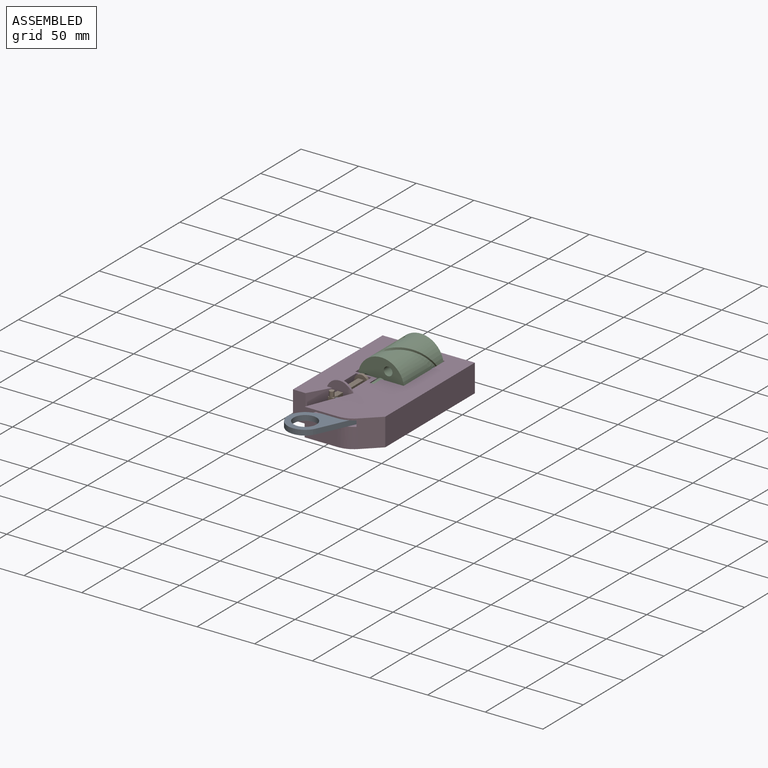
[diagram: assembled view]
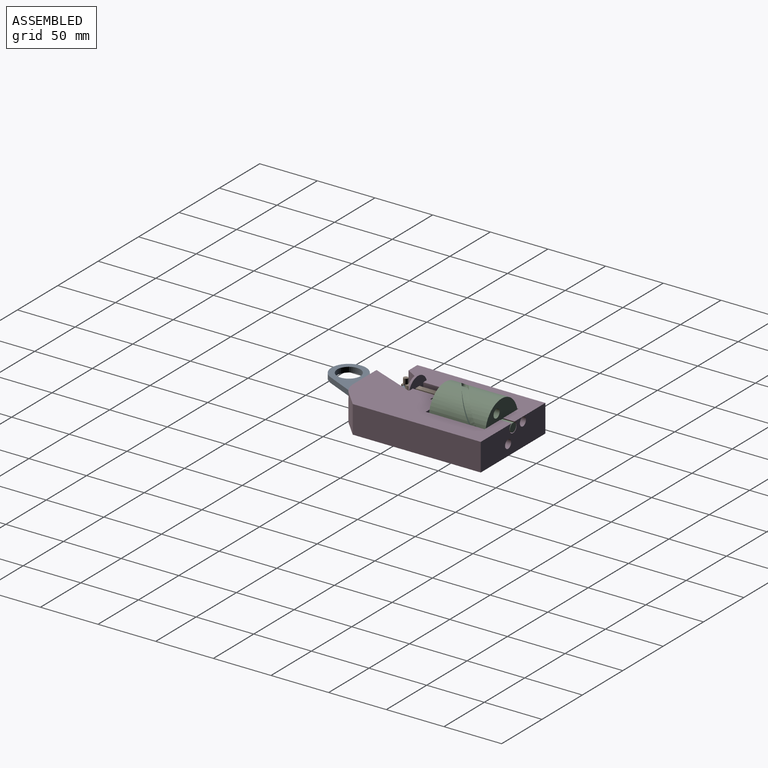
[diagram: assembled view, second angle]
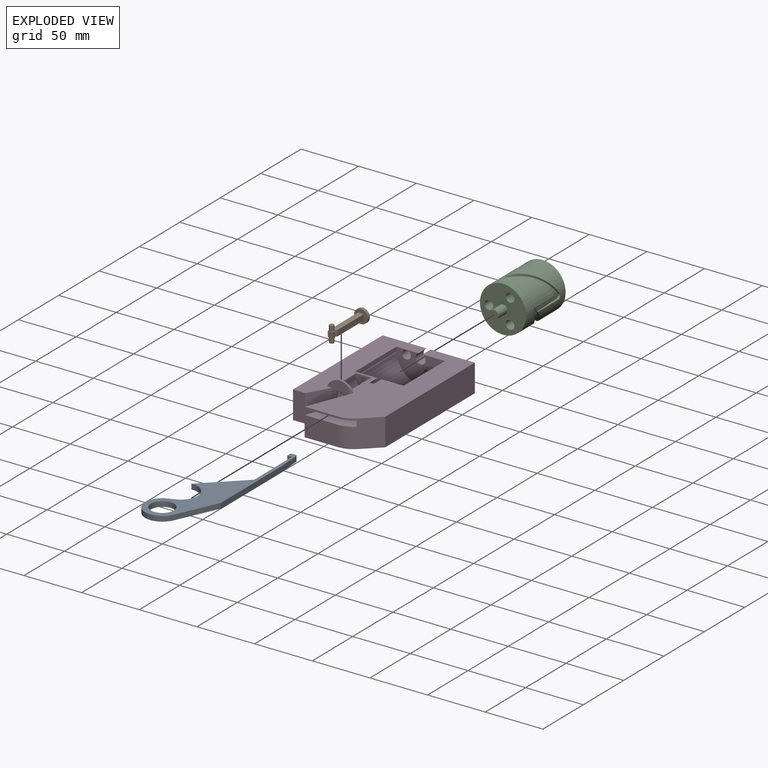
[diagram: exploded view]
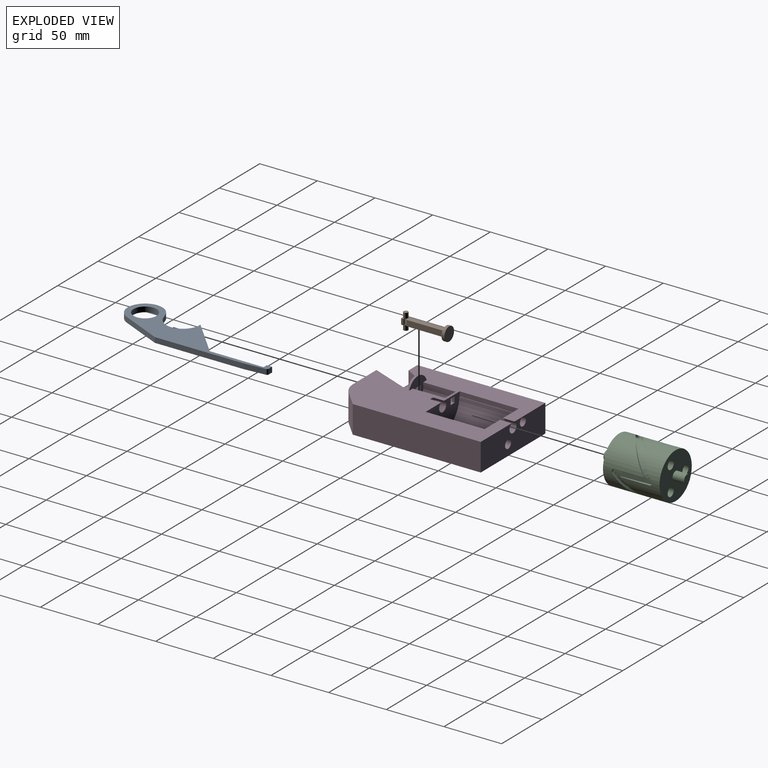
[diagram: exploded view, second angle]
ASSEMBLY  parts=4 mates=6
PART A: 17 faces, bbox 45x141.3x4.5 mm
  f0: plane 17.49x4.5mm, normal (1,-0.07,0), area 78.9mm2, adj f1,f14,f15,f16
  f1: cylinder r=30mm len=4.5mm, axis (0,0,-1), area 10.1mm2, adj f0,f2,f15,f16
  f2: plane 75.59x4.5mm, normal (1,0,0), area 340.1mm2, adj f1,f3,f15,f16
  f3: plane 35.78x16.36mm, normal (0.91,0.42,0), area 177mm2, adj f2,f4,f15,f16
  f4: cylinder r=15mm len=29.17mm, axis (0,0,-1), area 266.5mm2, adj f3,f5,f15,f16
  f5: plane 4.93x4.5mm, normal (-0.33,-0.94,0), area 23.5mm2, adj f4,f6,f15,f16
  f6: cylinder r=14.46mm len=28.12mm, axis (0,0,-1), area 182.7mm2, adj f5,f7,f15,f16
  f7: plane 4.5x1mm, normal (0,1,0), area 4.5mm2, adj f6,f8,f15,f16
  f8: plane 32.75x31mm, normal (-0.69,-0.73,0), area 202.9mm2, adj f7,f9,f15,f16
  f9: plane 46.75x4.5mm, normal (-1,0,0), area 210.4mm2, adj f8,f10,f15,f16
  f10: plane 4.5x4mm, normal (0,1,0), area 18mm2, adj f9,f11,f15,f16
  f11: plane 4.5x4.5mm, normal (-1,0,0), area 20.3mm2, adj f10,f12,f15,f16
  f12: plane 4.5x4.11mm, normal (0,-1,0), area 18.5mm2, adj f11,f14,f15,f16
  f13: cylinder r=10mm len=20mm, axis (0,0,-1), area 282.7mm2, adj f15,f16
  f14: cylinder r=1.5mm len=4.5mm, axis (0,0,-1), area 10.1mm2, adj f0,f12,f15,f16
  f15: plane 141.25x45mm, normal (0,0,1), area 1905.8mm2, adj f0,f1,f2,f3,f4,f5,f6,f7
  f16: plane 141.25x45mm, normal (0,0,-1), area 1905.8mm2, adj f0,f1,f2,f3,f4,f5,f6,f7
PART B: 21 faces, bbox 12x40x14 mm
  f0: plane 32.5x5mm, normal (1,0,0), area 162.5mm2, adj f2,f4,f6,f20
  f1: plane 3x2mm, normal (0,0,-1), area 2.9mm2, adj f11,f12,f15,f19
  f2: plane 35.5x5mm, normal (0,0,-1), area 168.8mm2, adj f0,f6,f9,f15,f20
  f3: plane 3x2mm, normal (0,0,1), area 2.9mm2, adj f11,f12,f14,f19
  f4: plane 35.5x5mm, normal (0,0,1), area 168.8mm2, adj f0,f6,f9,f14,f20
  f5: cylinder r=6mm len=12mm, axis (0,-1,0), area 94.2mm2, adj f6,f7
  f6: plane 12x12mm, normal (0,1,0), area 88.1mm2, adj f0,f2,f4,f5,f9
  f7: plane 12x12mm, normal (0,-1,0), area 113.1mm2, adj f5
  f8: plane 2x2mm, normal (0,0,-1), area 0.9mm2, adj f9,f12,f15
  f9: plane 37.5x5mm, normal (-1,0,0), area 187.5mm2, adj f2,f4,f6,f8,f10,f12
  f10: plane 2x2mm, normal (0,0,1), area 0.9mm2, adj f9,f12,f14
  f11: plane 5x2mm, normal (1,0,0), area 10mm2, adj f1,f3,f12,f19
  f12: plane 5x5mm, normal (0,1,0), area 25mm2, adj f1,f3,f8,f9,f10,f11
  f13: plane 4x4mm, normal (0,0,1), area 12.6mm2, adj f14
  f14: cylinder r=2mm len=4.5mm, axis (0,0,-1), area 56.5mm2, adj f3,f4,f10,f13,f17
  f15: cylinder r=2mm len=4.5mm, axis (0,0,-1), area 56.5mm2, adj f1,f2,f8,f16,f18
  f16: plane 4x4mm, normal (0,0,-1), area 12.6mm2, adj f15
  f17: plane 1.05x1mm, normal (0,0,-1), area 0.6mm2, adj f14,f19,f20
  f18: plane 1.05x1mm, normal (0,0,1), area 0.6mm2, adj f15,f19,f20
  f19: plane 5x2mm, normal (0,-1,0), area 10mm2, adj f1,f3,f11,f17,f18,f20
  f20: plane 5x3mm, normal (0.83,0.55,0), area 18mm2, adj f0,f2,f4,f17,f18,f19
PART C: 56 faces, bbox 42.3x70.2x41 mm
  f0: plane 25.14x1.6mm, normal (-0.87,0,-0.5), area 26.1mm2, adj f1,f5,f8,f10,f39,f49
  f1: plane 7.52x4.17mm, normal (-0.5,0,0.87), area 24mm2, adj f0,f6,f22,f39,f49
  f2: plane 25.14x1.6mm, normal (0.87,0,-0.5), area 26.1mm2, adj f3,f4,f5,f7,f45,f46
  f3: plane 7.52x4.17mm, normal (-0.5,0,-0.87), area 24mm2, adj f2,f12,f20,f45,f46
  f4: plane 25x4.33mm, normal (-0.5,0,-0.87), area 109.6mm2, adj f2,f7,f40,f42,f45
  f5: cylinder r=20mm len=40mm, axis (0,1,0), area 2420.3mm2, adj f0,f2,f7,f10,f13,f19,f23,f29
  f6: bspline ~32.79x27.53mm, area 85.9mm2, adj f1,f16,f22,f34,f39,f42,f43,f44
  f7: bspline ~37.01x33.75mm, area 89.3mm2, adj f2,f4,f5,f22,f42,f49,f50,f51
  f8: plane 25.2x4.53mm, normal (-0.5,0,0.87), area 109.6mm2, adj f0,f10,f34,f36,f39
  f9: bspline ~28.53x27.53mm, area 85.7mm2, adj f16,f21,f24,f30,f33,f36,f37,f38
  f10: bspline ~33.75x31.8mm, area 89.7mm2, adj f0,f5,f8,f21,f30,f31,f36
  f11: plane 5x5mm, normal (1,0,0), area 9.6mm2, adj f13,f23,f24,f26,f33
  f12: bspline ~29.09x28.13mm, area 85.9mm2, adj f3,f16,f20,f26,f27,f28,f40,f45
  f13: bspline ~33.75x33.35mm, area 89.3mm2, adj f5,f11,f20,f23,f26,f46,f47,f48
  f14: cylinder r=3.75mm len=49mm, axis (0,1,0), area 1154.5mm2, adj f18,f19
  f15: cylinder r=3.75mm len=49mm, axis (0,1,0), area 1154.5mm2, adj f18,f19
  f16: cylinder r=20mm len=40mm, axis (0,1,0), area 2546mm2, adj f6,f9,f12,f18,f24,f26,f27,f28
  f17: cylinder r=3.75mm len=49mm, axis (0,1,0), area 1154.5mm2, adj f18,f19
  f18: plane 40x40mm, normal (0,-1,0), area 1079.9mm2, adj f14,f15,f16,f17,f55
  f19: plane 40x40mm, normal (0,1,0), area 1079.9mm2, adj f5,f14,f15,f17,f53
  f20: bspline ~33.91x28.41mm, area 232.9mm2, adj f3,f12,f13,f25,f26,f46
  f21: bspline ~33.91x28.41mm, area 233.4mm2, adj f9,f10,f30,f35,f36
  f22: bspline ~33.91x32.74mm, area 232.9mm2, adj f1,f6,f7,f41,f42,f49
  f23: plane 25.14x1.85mm, normal (0,0,1), area 36.1mm2, adj f5,f11,f13,f30,f32,f33
  f24: plane 25.16x1.86mm, normal (0,0,-1), area 31.1mm2, adj f9,f11,f16,f26,f33
  f25: plane 5.01x4.06mm, normal (1,0,0), area 13mm2, adj f20,f26
  f26: cylinder r=2.5mm len=5mm, axis (1,0,0), area 13.2mm2, adj f11,f12,f13,f16,f20,f24,f25,f28
  f27: plane 0.84x0.03mm, normal (0,0,-1), area 0mm2, adj f12,f16,f28
  f28: extruded ~0.94x0.94mm, area 1mm2, adj f12,f16,f26,f27
  f29: plane 2x0.35mm, normal (0,-1,0), area 0.7mm2, adj f5,f30,f31,f32
  f30: plane 7.53x5.03mm, normal (1,0,0), area 24.4mm2, adj f9,f10,f21,f23,f29,f31,f32,f33
  f31: bspline ~4.24x2.2mm, area 5.1mm2, adj f5,f10,f29,f30
  f32: cylinder r=2.5mm len=2.5mm, axis (-1,0,0), area 7.5mm2, adj f5,f23,f29,f30
  f33: plane 20x5mm, normal (1,0.05,0), area 100.1mm2, adj f9,f11,f23,f24,f30
  f34: plane 25.14x0.8mm, normal (0.87,0,0.5), area 21.1mm2, adj f6,f8,f16,f36,f39
  f35: plane 5.01x3.52mm, normal (-0.5,0,0.87), area 13mm2, adj f21,f36
  f36: cylinder r=2.5mm len=5mm, axis (-0.5,0,0.87), area 13.2mm2, adj f8,f9,f10,f16,f21,f34,f35,f38
  f37: plane 0.73x0.42mm, normal (0.87,0,0.5), area 0mm2, adj f9,f16,f38
  f38: extruded ~1.29x1.29mm, area 1mm2, adj f9,f16,f36,f37
  f39: plane 4.83x3.27mm, normal (0,1,0), area 4.9mm2, adj f0,f1,f6,f8,f34
  f40: plane 25.14x0.8mm, normal (-0.87,0,0.5), area 21.1mm2, adj f4,f12,f16,f42,f45
  f41: plane 5.01x3.52mm, normal (-0.5,0,-0.87), area 13mm2, adj f22,f42
  f42: cylinder r=2.5mm len=5mm, axis (-0.5,0,-0.87), area 13.2mm2, adj f4,f6,f7,f16,f22,f40,f41,f44
  f43: plane 0.73x0.42mm, normal (-0.87,0,0.5), area 0mm2, adj f6,f16,f44
  f44: extruded ~1.29x1.29mm, area 1mm2, adj f6,f16,f42,f43
  f45: plane 4.66x3.37mm, normal (0,1,0), area 4.9mm2, adj f2,f3,f4,f12,f40
  f46: cylinder r=2.5mm len=4.61mm, axis (0.5,0,0.87), area 11.2mm2, adj f2,f3,f5,f13,f20,f48
  f47: plane 1.6x0.93mm, normal (0.87,0,-0.5), area 0.1mm2, adj f5,f13,f48
  f48: extruded ~2.09x1.68mm, area 2mm2, adj f5,f13,f46,f47
  f49: cylinder r=2.5mm len=4.61mm, axis (0.5,0,-0.87), area 11.2mm2, adj f0,f1,f5,f7,f22,f51
  f50: plane 1.6x0.93mm, normal (-0.87,0,-0.5), area 0.1mm2, adj f5,f7,f51
  f51: extruded ~2.09x1.68mm, area 2mm2, adj f5,f7,f49,f50
  f52: plane 7.5x7.5mm, normal (0,1,0), area 44.2mm2, adj f53
  f53: cylinder r=3.75mm len=10mm, axis (0,1,0), area 235.6mm2, adj f19,f52
  f54: plane 7.5x7.5mm, normal (0,-1,0), area 44.2mm2, adj f55
  f55: cylinder r=3.75mm len=11mm, axis (0,1,0), area 259.2mm2, adj f18,f54
PART D: 50 faces, bbox 80x130x31.5 mm
  f0: cylinder r=6.5mm len=28mm, axis (0,-1,0), area 515.5mm2, adj f25,f40,f46,f48
  f1: plane 130x80mm, normal (0,0,-1), area 6734mm2, adj f2,f3,f4,f9,f10,f11,f12,f14
  f2: cylinder r=20mm len=24mm, axis (0,0,-1), area 294mm2, adj f1,f3,f5,f6,f7,f13,f26,f35
  f3: plane 28.56x1.5mm, normal (0,1,0), area 42.8mm2, adj f1,f2,f4,f6
  f4: plane 39.16x15.66mm, normal (-0.93,-0.37,0), area 63.3mm2, adj f1,f3,f6,f49
  f5: plane 28.56x17.5mm, normal (0,1,0), area 499.9mm2, adj f2,f7,f13,f32
  f6: plane 120x41.55mm, normal (0,0,1), area 2102.3mm2, adj f2,f3,f4,f8,f11,f15,f17,f26
  f7: plane 120x41.55mm, normal (0,0,-1), area 2135.6mm2, adj f2,f5,f8,f11,f17,f26,f27,f28
  f8: plane 17.4x5mm, normal (1,0,0), area 87mm2, adj f6,f7,f30,f49
  f9: plane 19x18.03mm, normal (0,1,0), area 229.4mm2, adj f1,f33,f34,f39,f41,f42,f43,f44
  f10: plane 31.05x24mm, normal (0,1,0), area 513.6mm2, adj f1,f13,f14,f32,f33,f34
  f11: plane 42x24mm, normal (0,-1,0), area 737.9mm2, adj f1,f6,f7,f12,f13,f15,f21,f22
  f12: plane 51x4mm, normal (1,0,0), area 204mm2, adj f1,f11,f17,f37
  f13: plane 130x80mm, normal (0,0,1), area 9225.5mm2, adj f2,f5,f10,f11,f14,f16,f17,f18
  f14: plane 111x24mm, normal (-1,0,0), area 2664mm2, adj f1,f10,f13,f18
  f15: plane 51x1.5mm, normal (-1,0,0), area 76.5mm2, adj f1,f6,f11,f17
  f16: plane 111x24mm, normal (1,0,0), area 2664mm2, adj f1,f13,f18,f35
  f17: plane 46x24mm, normal (0,1,0), area 699.5mm2, adj f1,f6,f7,f12,f13,f15,f19,f20
  f18: plane 80x24mm, normal (0,-1,0), area 1773mm2, adj f1,f13,f14,f16,f19,f20,f31
  f19: cylinder r=3.75mm len=10mm, axis (0,1,0), area 235.6mm2, adj f17,f18
  f20: cylinder r=3.75mm len=10mm, axis (0,1,0), area 235.6mm2, adj f17,f18
  f21: plane 5x2mm, normal (0,0,-1), area 10mm2, adj f11,f22,f24,f25
  f22: plane 5x2mm, normal (1,0,0), area 10mm2, adj f11,f21,f23,f25
  f23: plane 5x2mm, normal (0,0,1), area 10mm2, adj f11,f22,f24,f25
  f24: plane 5x2mm, normal (-1,0,0), area 10mm2, adj f11,f21,f23,f25
  f25: plane 13x10.5mm, normal (0,1,0), area 93.4mm2, adj f0,f1,f21,f22,f23,f24,f45,f46
  f26: plane 115.21x5mm, normal (-1,0,0), area 576.1mm2, adj f2,f6,f7,f17
  f27: plane 16.44x5mm, normal (0,1,0), area 79.5mm2, adj f6,f7,f28,f29
  f28: plane 7x5mm, normal (1,0,0), area 35mm2, adj f6,f7,f11,f27
  f29: cylinder r=4.35mm len=9.6mm, axis (0,1,0), area 214.8mm2, adj f1,f6,f7,f11,f27,f30
  f30: plane 8.35x7.91mm, normal (0,-1,0), area 38.2mm2, adj f1,f6,f7,f8,f29
  f31: cylinder r=4.35mm len=10mm, axis (0,1,0), area 238.2mm2, adj f1,f17,f18
  f32: plane 39.16x17.5mm, normal (-0.93,-0.37,0), area 466.7mm2, adj f5,f7,f10,f13,f33,f49
  f33: plane 28.2x20.16mm, normal (0,0,-1), area 336mm2, adj f9,f10,f32,f34,f49
  f34: plane 18x11.5mm, normal (0.87,0.5,0), area 238.7mm2, adj f1,f9,f10,f33
  f35: plane 24x14.21mm, normal (0.69,0.72,0), area 470.4mm2, adj f1,f2,f13,f16
  f36: cylinder r=20.5mm len=51mm, axis (0,1,0), area 1283.1mm2, adj f7,f11,f13,f17
  f37: plane 51x0.5mm, normal (0,0,-1), area 25.5mm2, adj f11,f12,f17,f38
  f38: cylinder r=20.5mm len=51mm, axis (0,1,0), area 1410.9mm2, adj f11,f13,f17,f37
  f39: cylinder r=11.5mm len=21.56mm, axis (0,1,0), area 52.5mm2, adj f1,f9,f40,f49
  f40: plane 21.56x18mm, normal (0,-1,0), area 200mm2, adj f0,f1,f39,f41,f42,f43,f44,f45
  f41: plane 6x2mm, normal (0,0,1), area 12mm2, adj f9,f40,f42,f44
  f42: plane 6x2mm, normal (-1,0,0), area 12mm2, adj f9,f40,f41,f43
  f43: plane 6x2mm, normal (0,0,-1), area 12mm2, adj f9,f40,f42,f44
  f44: plane 6x2mm, normal (1,0,0), area 12mm2, adj f9,f40,f41,f43
  f45: plane 28x5mm, normal (1,0,0), area 140mm2, adj f1,f25,f40,f46
  f46: plane 28x0.08mm, normal (0,0,-1), area 2.2mm2, adj f0,f25,f40,f45
  f47: plane 28x5mm, normal (-1,0,0), area 140mm2, adj f1,f25,f40,f48
  f48: plane 28x0.08mm, normal (0,0,-1), area 2.2mm2, adj f0,f25,f40,f47
  f49: cylinder r=5mm len=16.43mm, axis (0,0,1), area 81.6mm2, adj f1,f4,f6,f7,f8,f9,f32,f33
PLACE A rot(axis=(-1,0,0),180deg) t=(0,-32.09,39.61)mm
PLACE B rot(axis=(-1,0,0),180deg) t=(0,-32.09,39.86)mm
PLACE C t=(0,20.85,39.86)mm
PLACE D rot(axis=(-1,0,0),180deg) t=(0,-31.15,39.86)mm fixed
MATE cylindrical C.f5 <-> D.f29  axis (0,1,0) through (0,2.68,39.86)mm
MATE planar A.f2 <-> D.f26  axis (1,0,0) through (25,-48.76,39.61)mm
MATE planar C.f5 <-> D.f18  axis (0,1,0) through (0,29.85,39.86)mm
MATE planar D.f7 <-> A.f15  axis (0,0,1) through (10.87,-64.15,37.36)mm
MATE planar B.f19 <-> A.f7  axis (0,1,0) through (-10.75,-72.09,39.86)mm
MATE cylindrical B.f5 <-> D.f0  axis (0,1,0) through (-12.25,-35.34,39.86)mm
